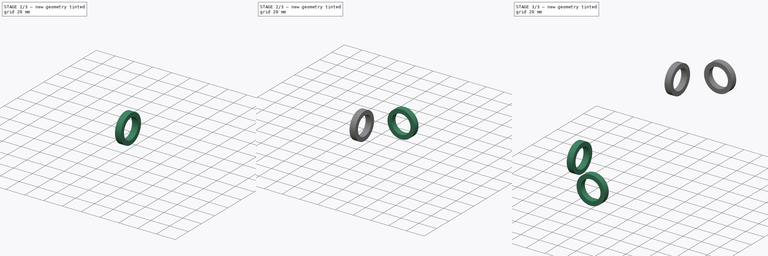
[diagram: build sequence overview — one tinted view per stage of 3, left to right]
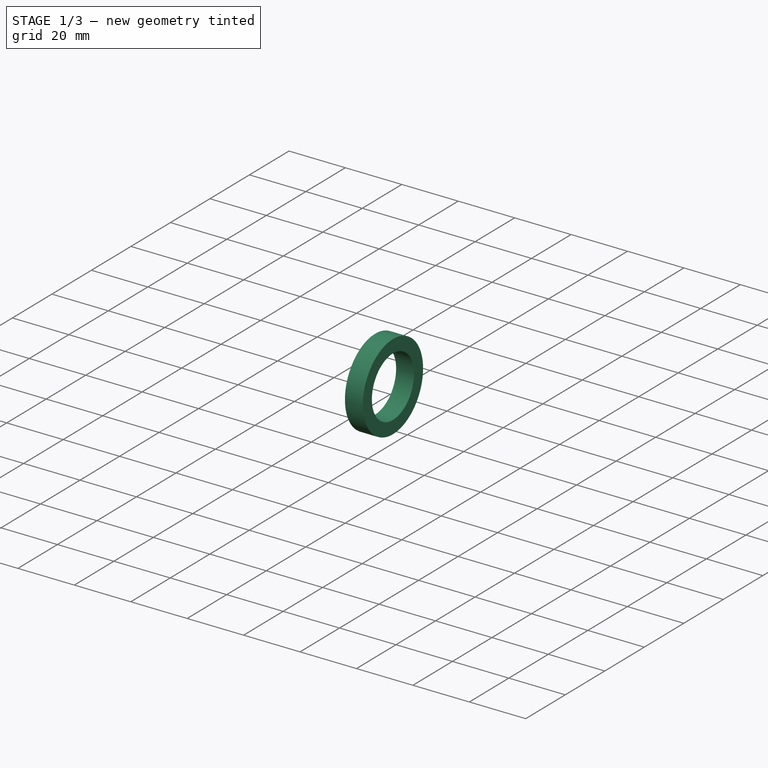
[diagram: stage 1 of 3 — iso view after this stage's code; geometry added in this stage tinted green]
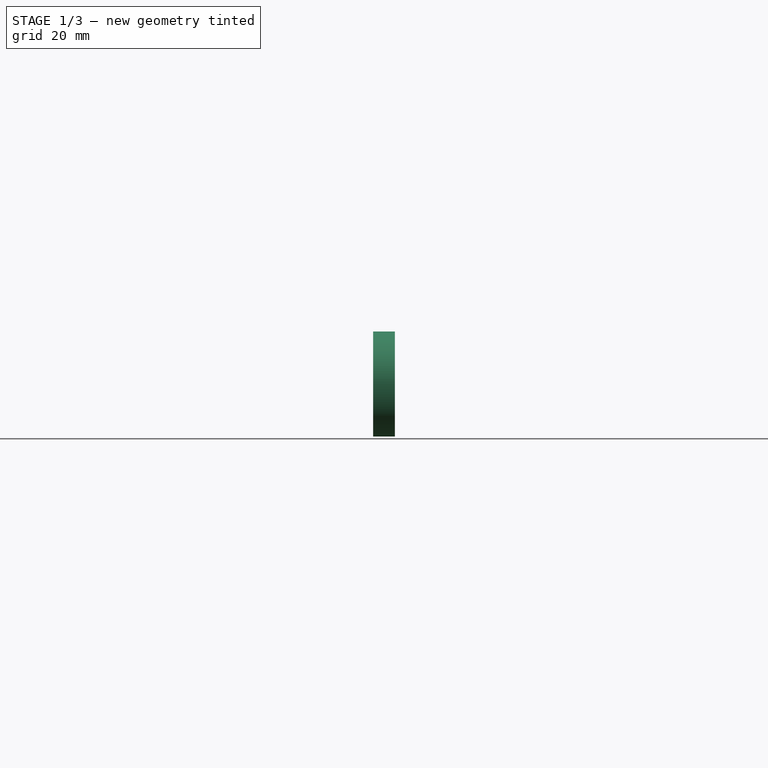
[diagram: stage 1 of 3 — front view after this stage's code; geometry added in this stage tinted green]
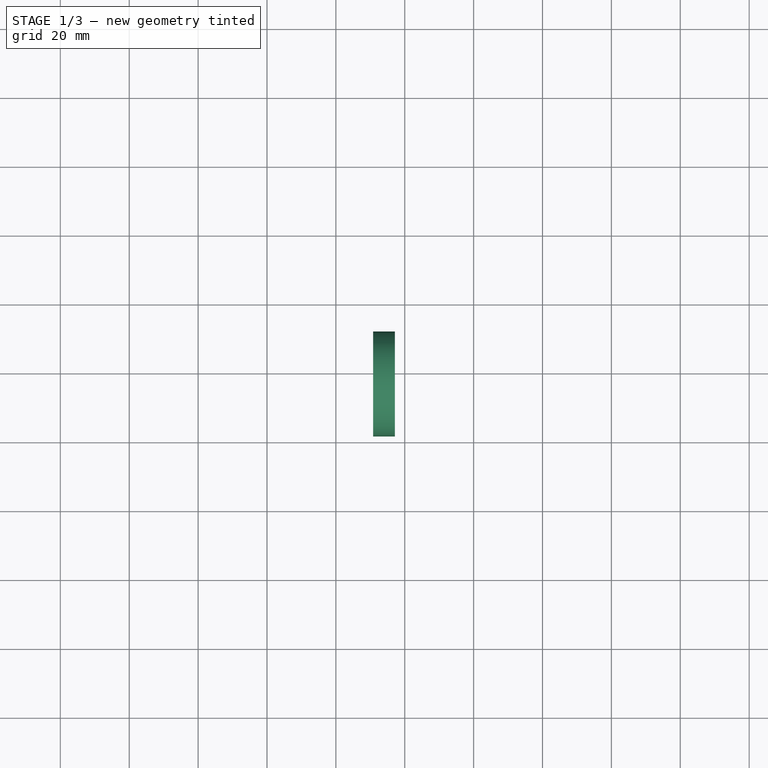
[diagram: stage 1 of 3 — top view after this stage's code; geometry added in this stage tinted green]
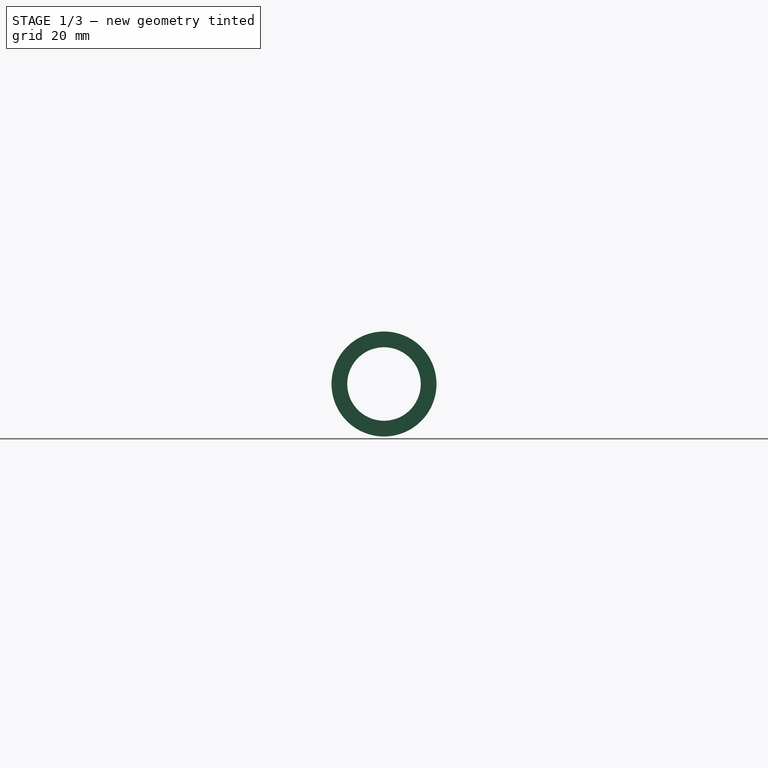
[diagram: stage 1 of 3 — right view after this stage's code; geometry added in this stage tinted green]
FCSTD DOCUMENT  (FreeCAD 0.16R6712 (Git))
Label: 0.5in NPT elbow
License: All rights reserved
LicenseURL: http://en.wikipedia.org/wiki/All_rights_reserved
objects: Part::FeaturePython×5, Sketcher::SketchObject×3, Part::Sweep×2, App::FeaturePython×2, Part::Part2DObjectPython×1, Part::Compound×1, PartDesign::Pad×1
note: 14 computed .brp shape members not serialized (recipe doc carries the construction recipe); baked Part::Feature solids carry a one-line shape summary decoded from their .brp

FEATURE [Part::Part2DObjectPython] Arc  # Draft 2D object (typed FeaturePython)
  FirstAngle = 0
  LastAngle = 90
  MakeFace = true
  Placement = pos=(0,-44.45,0) rot=(0,0,1;0rad)
  Radius = 43.18
FEATURE [Sketcher::SketchObject] Sketch
  Placement = pos=(0,0,0) rot=(0.57735,0.57735,0.57735;2.0944rad)
  sketch-geometry (1):
    g0: Circle CenterX=0 CenterY=0 CenterZ=0 NormalX=0 NormalY=0 NormalZ=1 Radius=13.716
  constraints (2):
    c: Coincident(g0,g-1)
    c: Radius(g0) = 13.716
FEATURE [Sketcher::SketchObject] Sketch001
  Placement = pos=(0,0,0) rot=(0.57735,0.57735,0.57735;2.0944rad)
  sketch-geometry (1):
    g0: Circle CenterX=0 CenterY=0 CenterZ=0 NormalX=0 NormalY=0 NormalZ=1 Radius=10.668
  constraints (2):
    c: Coincident(g0,g-1)
    c: Radius(g0) = 10.668
FEATURE [Part::Sweep] Sweep
  Frenet = false
  Sections = -> [Sketch001]
  Solid = false
  Spine = -> Arc [Edge1]
  Transition = 1
FEATURE [Part::Sweep] Sweep001
  Frenet = false
  Sections = -> [Sketch]
  Solid = false
  Spine = -> Arc [Edge1]
  Transition = 1
FEATURE [Part::Compound] Compound
  Links = -> [Sweep001,Sweep]
FEATURE [Sketcher::SketchObject] Sketch002
  Placement = pos=(0,-254,0) rot=(1,0,0;1.5708rad)
  sketch-geometry (2):
    g0: Circle CenterX=0 CenterY=0 CenterZ=0 NormalX=0 NormalY=0 NormalZ=1 Radius=10.668
    g1: Circle CenterX=0 CenterY=0 CenterZ=0 NormalX=0 NormalY=0 NormalZ=1 Radius=15.24
  constraints (4):
    c: Coincident(g0,g-1)
    c: Radius(g0) = 10.668
    c: Coincident(g1,g-1)
    c: Radius(g1) = 15.24
FEATURE [PartDesign::Pad] Pad
  Length = 6.35
  Length2 = 100
  Placement = pos=(0,-254,0) rot=(1,0,0;1.5708rad)
  Sketch = -> Sketch002
  Type = 0
FEATURE [Part::FeaturePython] Clone004  label="Clone of Pad003"  # Draft clone (typed FeaturePython)
  Objects = -> [Pad]
  Placement = pos=(50.8,-203.2,101.6) rot=(0.57735,0.57735,0.57735;2.0944rad)
  Scale = (1,1,1)
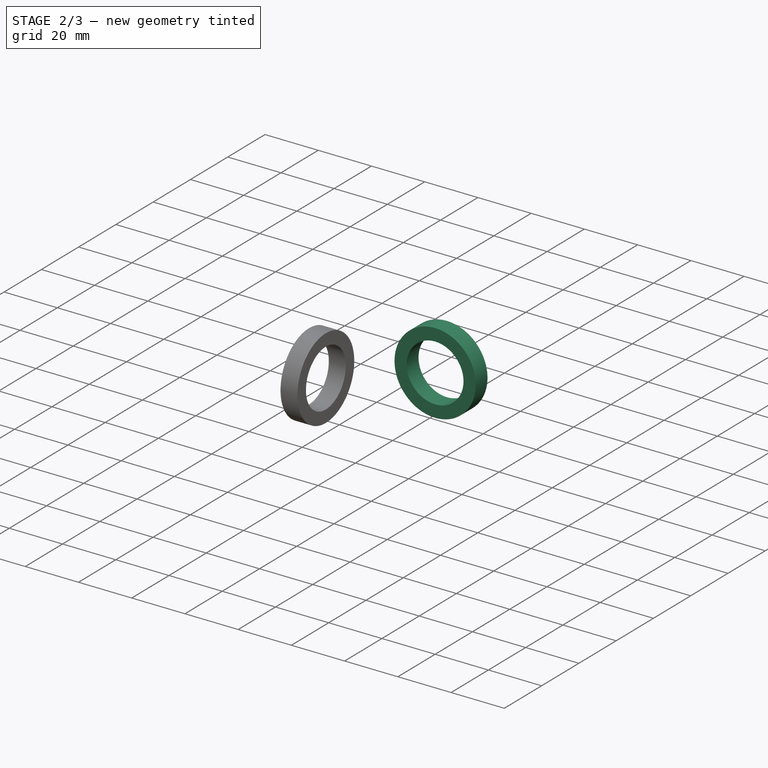
[diagram: stage 2 of 3 — iso view after this stage's code; geometry added in this stage tinted green]
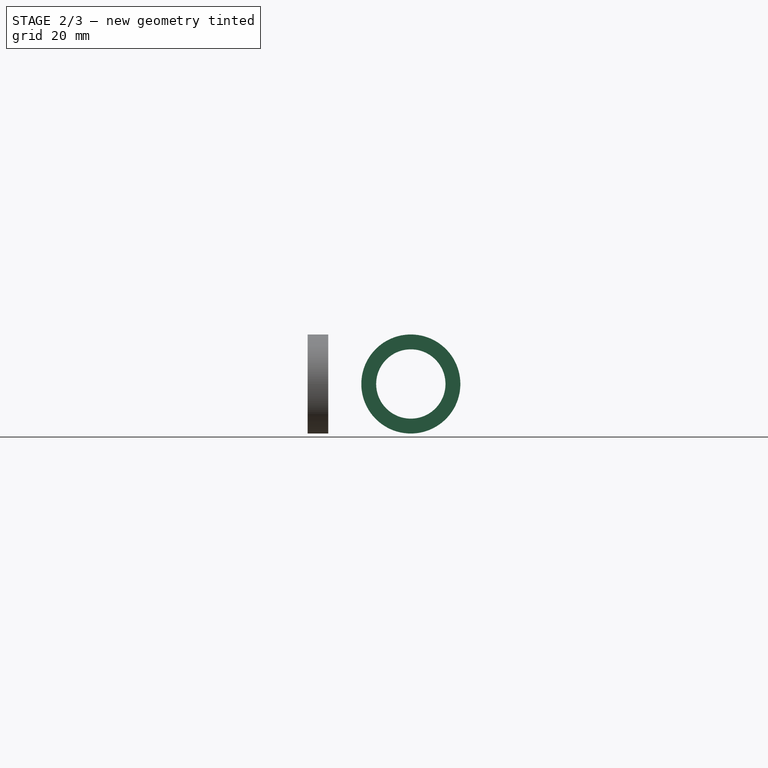
[diagram: stage 2 of 3 — front view after this stage's code; geometry added in this stage tinted green]
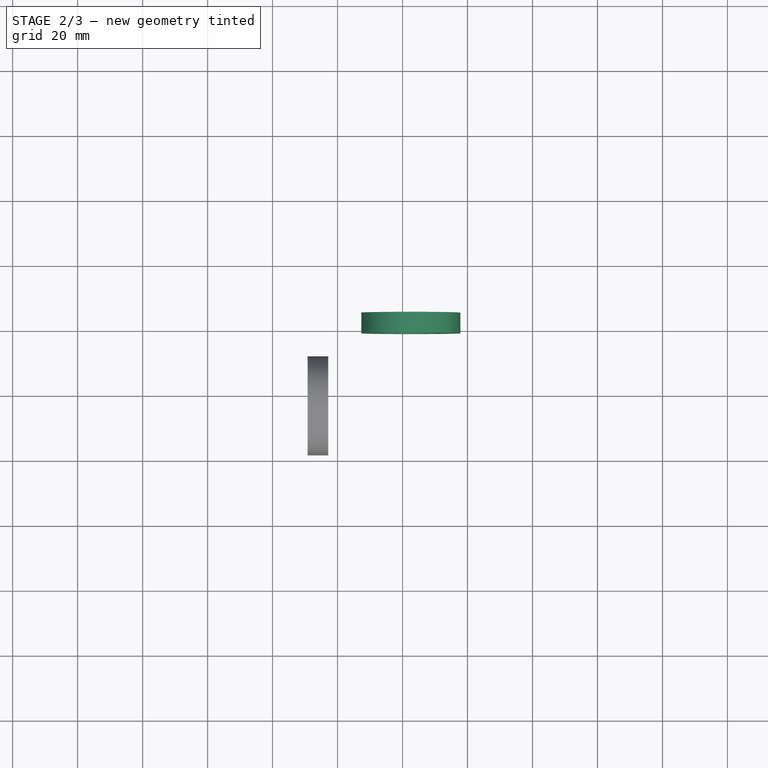
[diagram: stage 2 of 3 — top view after this stage's code; geometry added in this stage tinted green]
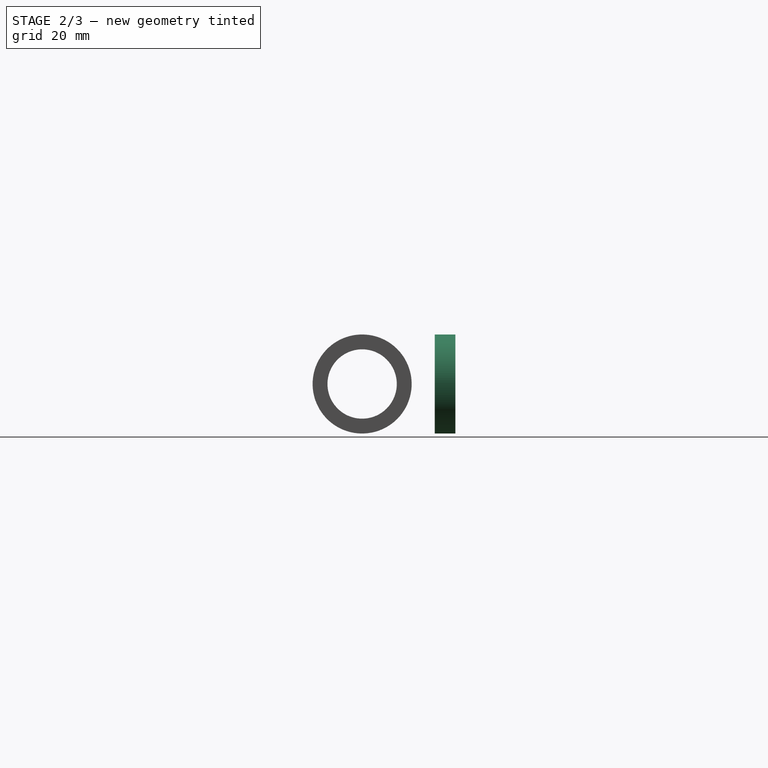
[diagram: stage 2 of 3 — right view after this stage's code; geometry added in this stage tinted green]
FEATURE [Part::FeaturePython] Clone002  label="Clone of Compound"  # Draft clone (typed FeaturePython)
  Objects = -> [Compound]
  Placement = pos=(-44.45,-209.55,0) rot=(0,0,1;0rad)
  Scale = (1,1,1)
FEATURE [App::FeaturePython] circularEdgeConstraint01  # a2plus constraint (typed FeaturePython)
  Object1 = Clone
  Object2 = Clone002
  SubElement1 = Edge5
  SubElement2 = Edge5
  Type = circularEdge
  directionConstraint = 0
  lockRotation = false
  offset = 0
FEATURE [App::FeaturePython] circularEdgeConstraint02  # a2plus constraint (typed FeaturePython)
  Object1 = Clone001
  Object2 = Clone002
  SubElement1 = Edge5
  SubElement2 = Edge6
  Type = circularEdge
  directionConstraint = 1
  lockRotation = false
  offset = 0
FEATURE [Part::FeaturePython] Clone003  label="Clone of Pad002"  # Draft clone (typed FeaturePython)
  Objects = -> [Pad]
  Placement = pos=(82.55,-174.498,101.6) rot=(0.57735,-0.57735,0.57735;2.0944rad)
  Scale = (1,1,1)
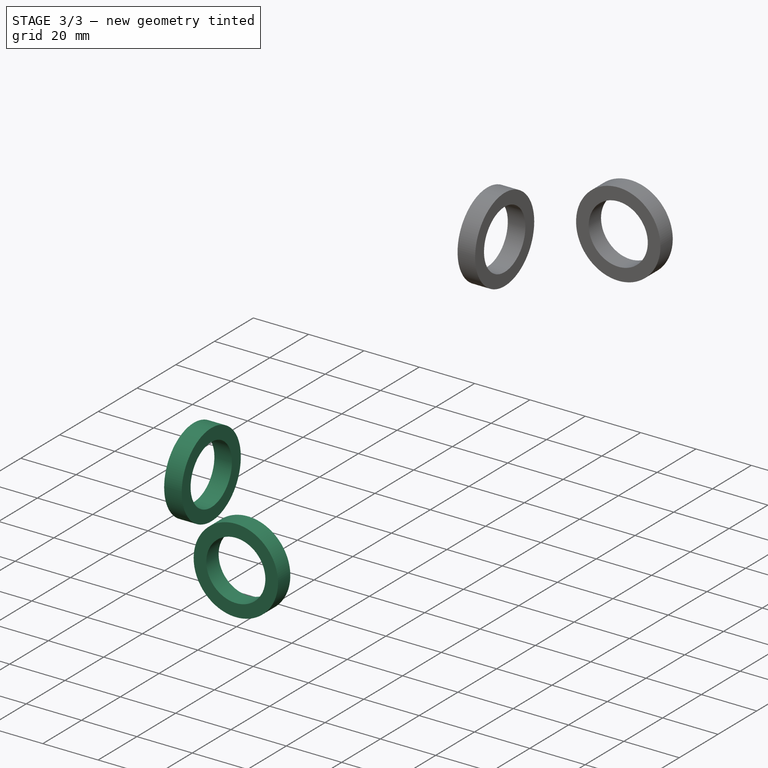
[diagram: stage 3 of 3 — iso view after this stage's code; geometry added in this stage tinted green]
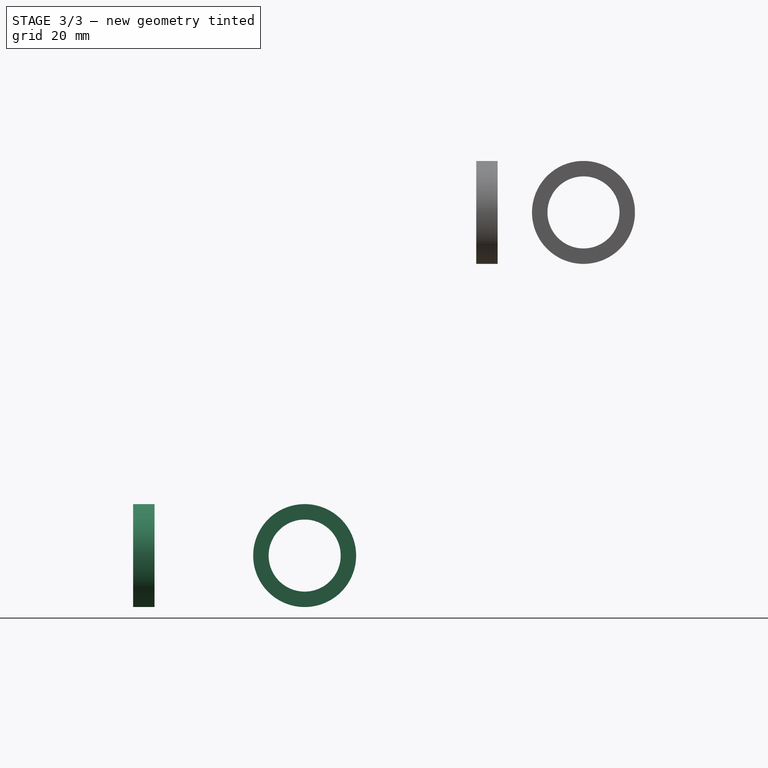
[diagram: stage 3 of 3 — front view after this stage's code; geometry added in this stage tinted green]
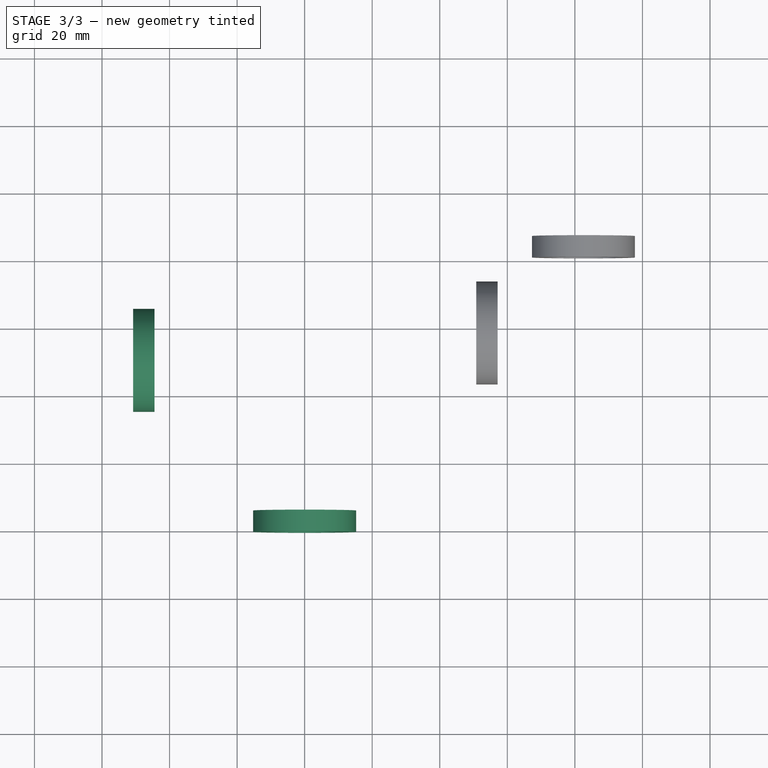
[diagram: stage 3 of 3 — top view after this stage's code; geometry added in this stage tinted green]
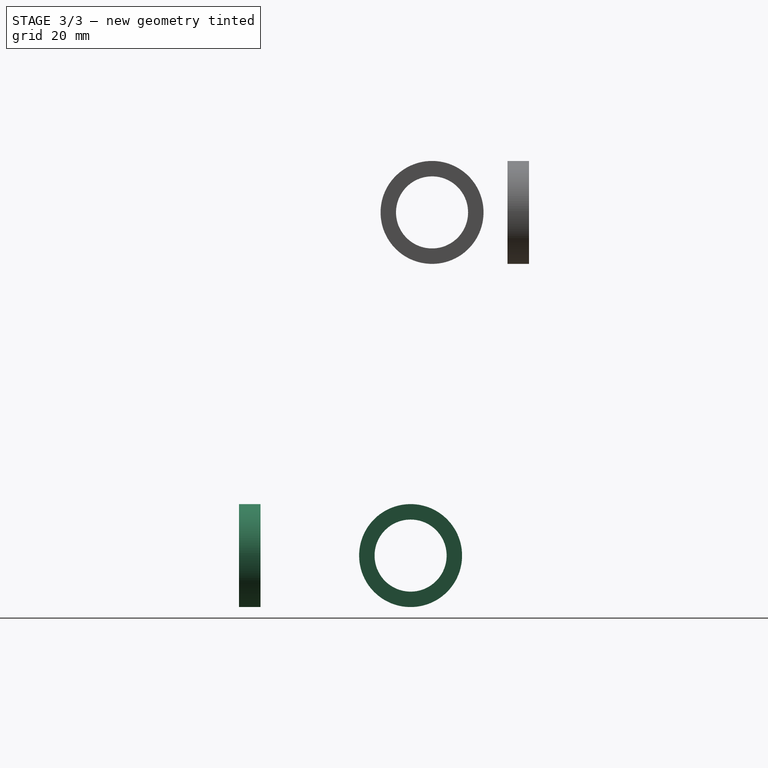
[diagram: stage 3 of 3 — right view after this stage's code; geometry added in this stage tinted green]
FEATURE [Part::FeaturePython] Clone  label="Clone of Pad"  # Draft clone (typed FeaturePython)
  Objects = -> [Pad]
  Placement = pos=(0,-254,0) rot=(1,0,0;1.5708rad)
  Scale = (1,1,1)
FEATURE [Part::FeaturePython] Clone001  label="Clone of Pad001"  # Draft clone (typed FeaturePython)
  Objects = -> [Pad]
  Placement = pos=(-44.45,-209.55,0) rot=(0,-1,0;1.5708rad)
  Scale = (1,1,1)
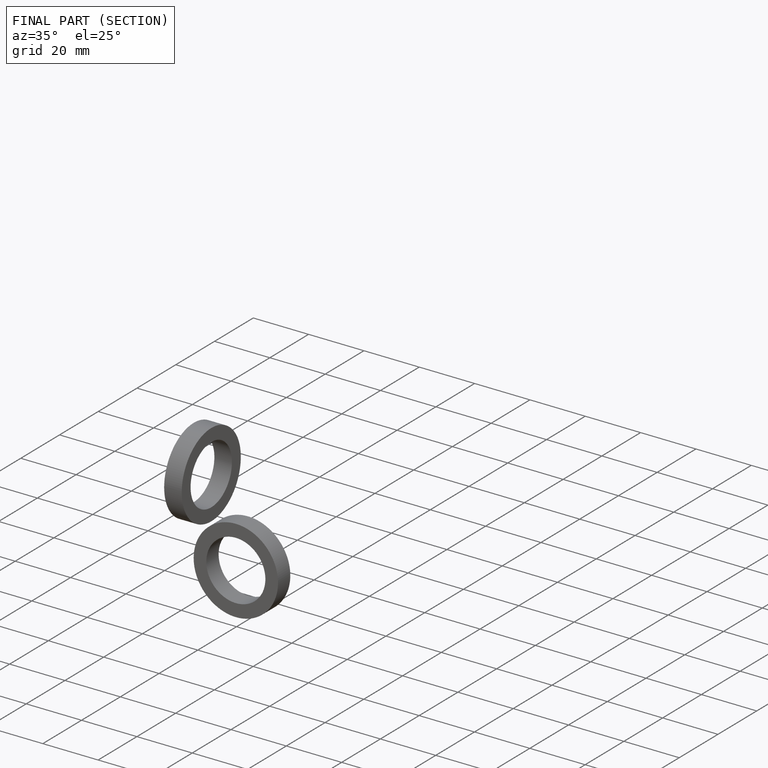
[diagram: finished part — half-section view (interior)]
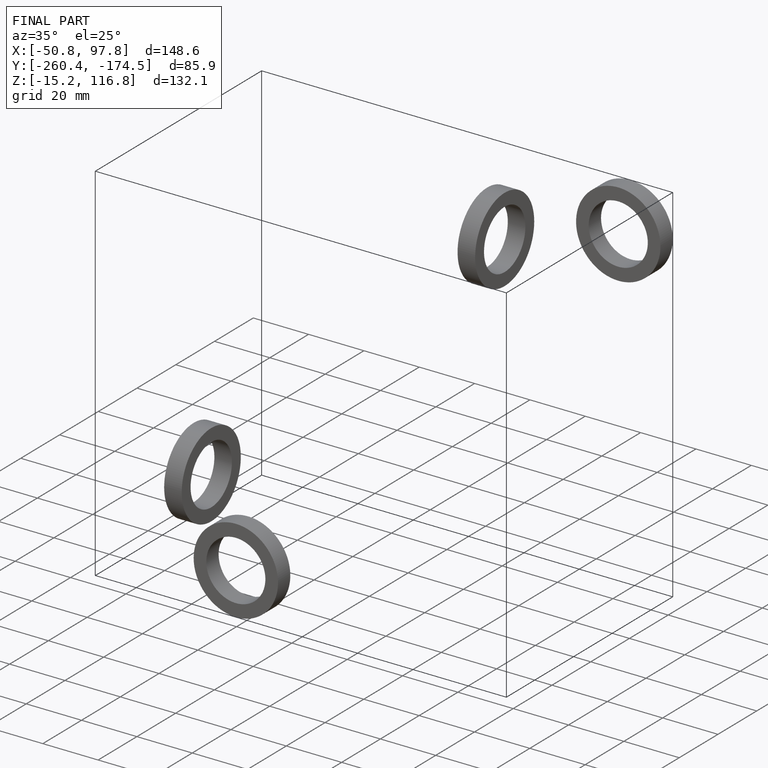
[diagram: finished part — iso view with bounding-box wireframe]
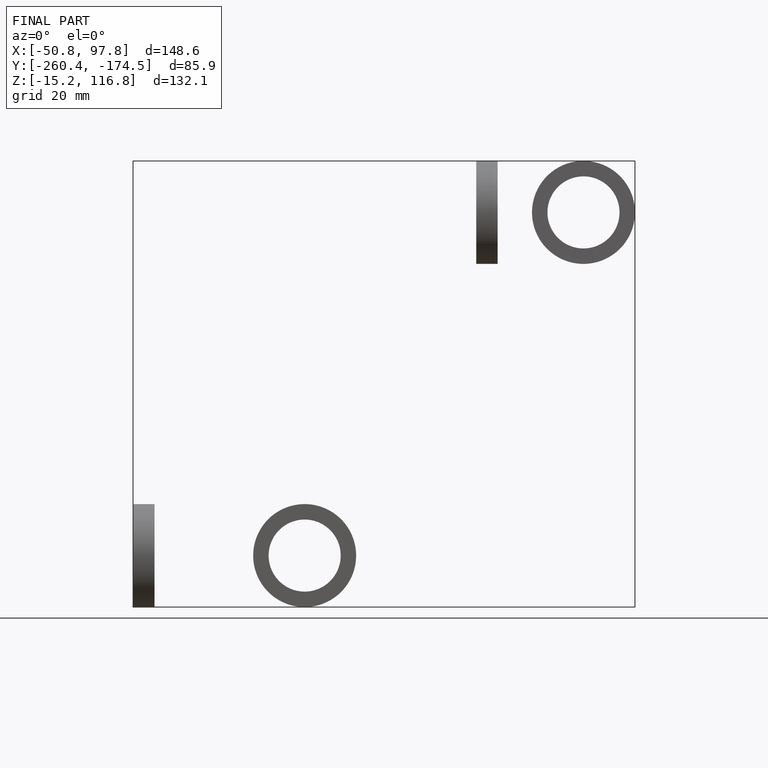
[diagram: finished part — front view with bounding-box wireframe]
